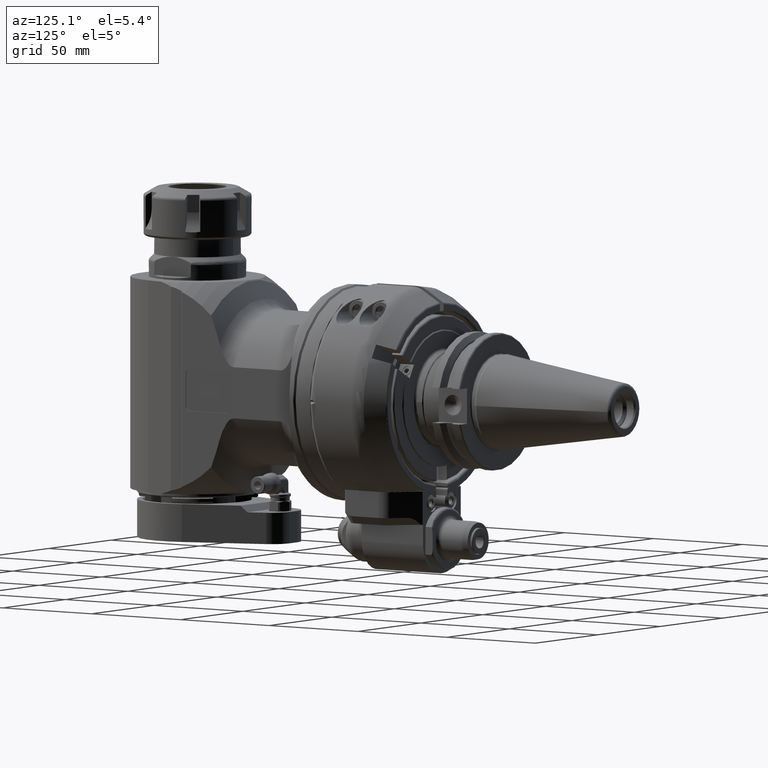
[diagram: clean part render]
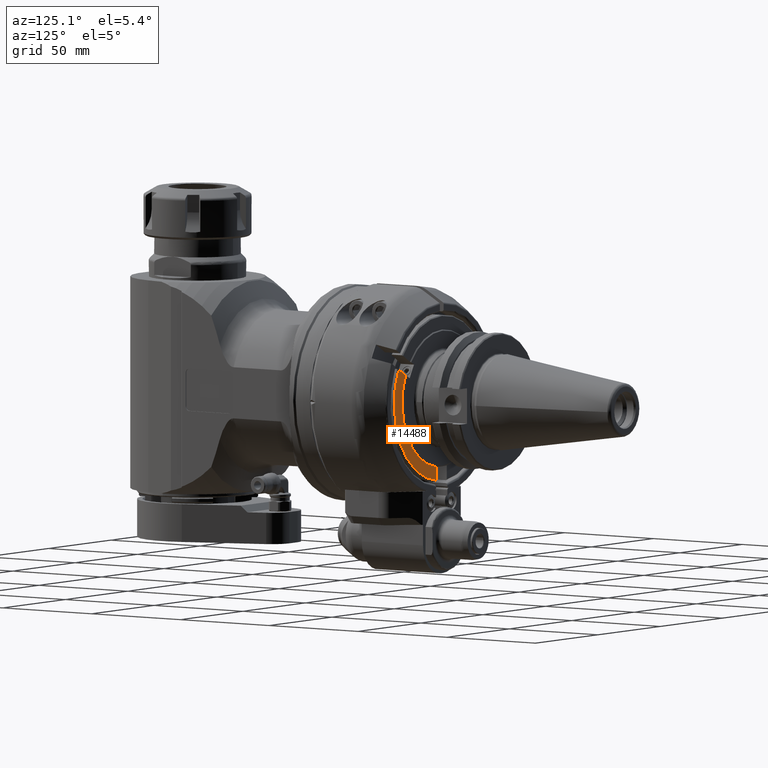
[diagram: same view with one face highlighted and labeled with its STEP entity id]
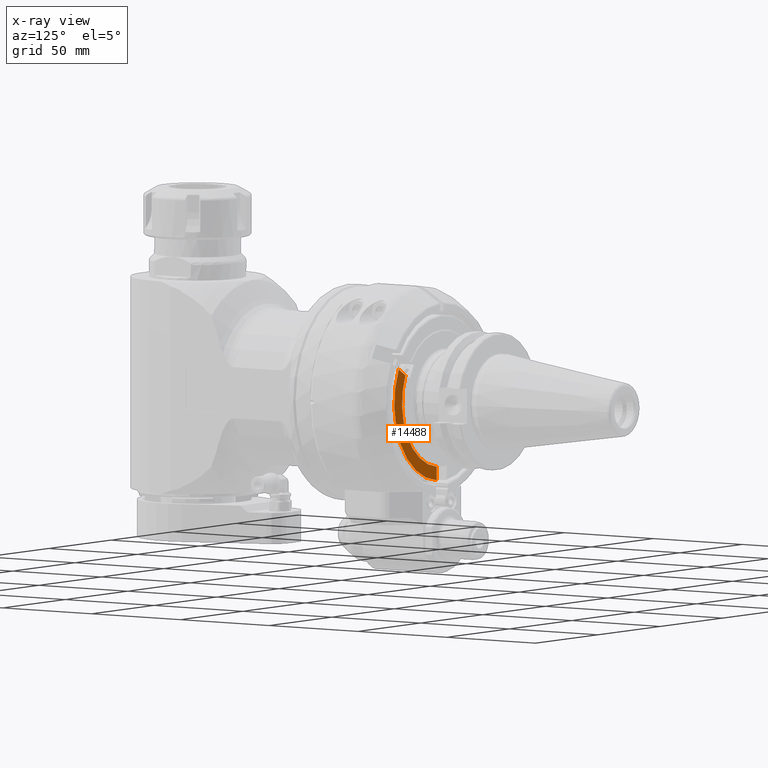
[diagram: x-ray of the same camera — body ghosted, the highlighted face saturated]
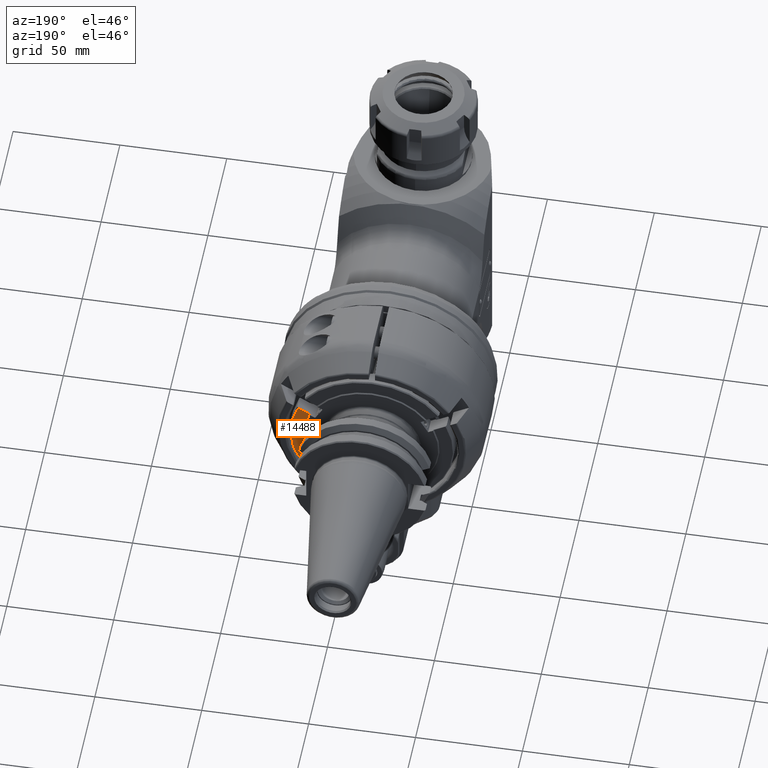
[diagram: same view with one face highlighted and labeled with its STEP entity id]
A machine part, auxiliary view. The second image highlights one B-rep face of the part: STEP entity #14488.
The next image is the same camera in x-ray: the body ghosted, the highlighted face saturated — about 0% of this face is hidden behind the body in this view.
A second angle (auxiliary view) of the same face is appended — the face is thin or edge-on in the first view.
In plain terms, the highlighted planar face has unit normal (0, 1, 0).
Its self-contained STEP definition (entity closure, byte-faithful):
#1463=LINE('',#32074,#2350);
#1498=LINE('',#32272,#2385);
#2350=VECTOR('',#19777,10.);
#2385=VECTOR('',#19906,6.28197553114879);
#2884=PLANE('',#16101);
#3680=FACE_OUTER_BOUND('',#4649,.T.);
#4649=EDGE_LOOP('',(#13134,#13135,#13136,#13137));
#5437=CIRCLE('',#16041,31.75);
#5462=CIRCLE('',#16102,38.);
#6996=VERTEX_POINT('',#32071);
#6997=VERTEX_POINT('',#32073);
#7010=VERTEX_POINT('',#32117);
#7050=VERTEX_POINT('',#32268);
#9013=EDGE_CURVE('',#6997,#6996,#1463,.T.);
#9030=EDGE_CURVE('',#6996,#7010,#5437,.T.);
#9092=EDGE_CURVE('',#7010,#7050,#1498,.T.);
#9122=EDGE_CURVE('',#7050,#6997,#5462,.T.);
#13134=ORIENTED_EDGE('',*,*,#9122,.T.);
#13135=ORIENTED_EDGE('',*,*,#9013,.T.);
#13136=ORIENTED_EDGE('',*,*,#9030,.T.);
#13137=ORIENTED_EDGE('',*,*,#9092,.T.);
#14488=ADVANCED_FACE('',(#3680),#2884,.T.);
#16041=AXIS2_PLACEMENT_3D('',#32121,#19796,#19797);
#16101=AXIS2_PLACEMENT_3D('',#32431,#19962,#19963);
#16102=AXIS2_PLACEMENT_3D('',#32432,#19964,#19965);
#19777=DIRECTION('',(0.,0.,1.));
#19796=DIRECTION('center_axis',(0.,-1.,0.));
#19797=DIRECTION('ref_axis',(0.86926923622807,0.,0.494338947431283));
#19906=DIRECTION('',(0.866025403784429,0.,0.500000000000017));
#19962=DIRECTION('center_axis',(0.,1.,0.));
#19963=DIRECTION('ref_axis',(-0.86926923622807,0.,-0.494338947431283));
#19964=DIRECTION('center_axis',(0.,1.,0.));
#19965=DIRECTION('ref_axis',(0.908396800327097,0.,0.418109140243899));
#32071=CARTESIAN_POINT('',(3.99951055760265,39.4985543943407,-31.4985430348102));
#32073=CARTESIAN_POINT('',(4.,39.5,-37.78888725538));
#32074=CARTESIAN_POINT('',(4.,39.5,-24.55152642015));
#32117=CARTESIAN_POINT('',(29.0787280165,39.5,12.74715956369));
#32121=CARTESIAN_POINT('Origin',(0.,39.5,0.));
#32268=CARTESIAN_POINT('',(34.51907841243,39.5,15.88814732927));
#32272=CARTESIAN_POINT('',(29.0787280165,39.5,12.74715956369));
#32431=CARTESIAN_POINT('Origin',(-30.95404959954,39.5,-17.6030528403));
#32432=CARTESIAN_POINT('Origin',(0.,39.5,0.));